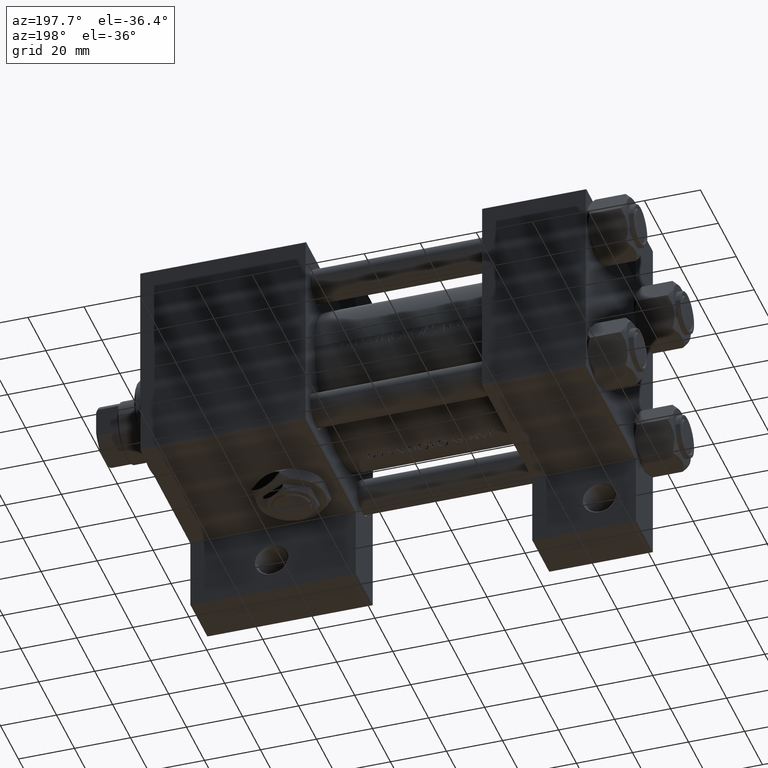
[diagram: clean part render]
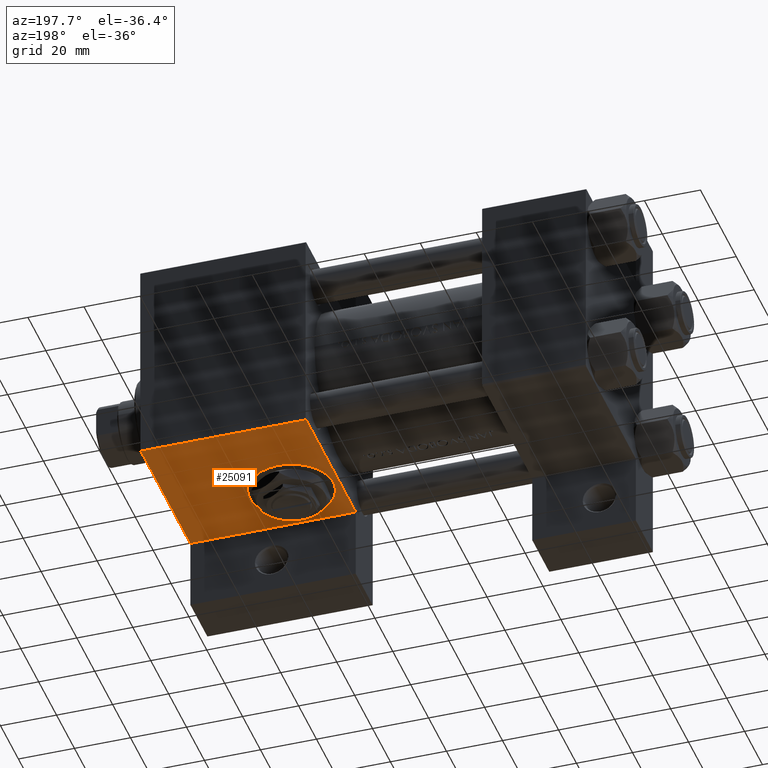
[diagram: same view with one face highlighted and labeled with its STEP entity id]
A machine part, auxiliary view. The second image highlights one B-rep face of the part: STEP entity #25091.
In plain terms, the highlighted planar face has unit normal (0, 0, -1).
Its self-contained STEP definition (entity closure, byte-faithful):
#477 = LINE ( 'NONE', #45808, #22704 ) ;
#1325 = EDGE_CURVE ( 'NONE', #25339, #25888, #40854, .T. ) ;
#1825 = ORIENTED_EDGE ( 'NONE', *, *, #14873, .T. ) ;
#2653 = CARTESIAN_POINT ( 'NONE',  ( 159.0000000000000000, 37.50000000000000000, 36.99999999999999289 ) ) ;
#3644 = CARTESIAN_POINT ( 'NONE',  ( 159.0000000000000000, 37.50000000000000000, 36.99999999999999289 ) ) ;
#4543 = LINE ( 'NONE', #20467, #28170 ) ;
#4988 = VERTEX_POINT ( 'NONE', #43506 ) ;
#5243 = VECTOR ( 'NONE', #33274, 1000.000000000000000 ) ;
#6941 = EDGE_LOOP ( 'NONE', ( #13994, #46259 ) ) ;
#7078 = CARTESIAN_POINT ( 'NONE',  ( 117.0000000000000000, 37.50000000000000000, 0.000000000000000000 ) ) ;
#8045 = CARTESIAN_POINT ( 'NONE',  ( 159.0000000000000000, 37.50000000000000000, 37.49999999999999289 ) ) ;
#8793 = ORIENTED_EDGE ( 'NONE', *, *, #48810, .T. ) ;
#10976 = CARTESIAN_POINT ( 'NONE',  ( 117.0000000000000000, 37.50000000000000000, 15.00000000000001243 ) ) ;
#11843 = VECTOR ( 'NONE', #44651, 1000.000000000000000 ) ;
#13994 = ORIENTED_EDGE ( 'NONE', *, *, #1325, .F. ) ;
#14139 = CARTESIAN_POINT ( 'NONE',  ( 117.0000000000000000, 37.50000000000000000, 0.000000000000000000 ) ) ;
#14415 = AXIS2_PLACEMENT_3D ( 'NONE', #8045, #22989, #38182 ) ;
#14767 = FACE_OUTER_BOUND ( 'NONE', #16002, .T. ) ;
#14873 = EDGE_CURVE ( 'NONE', #17704, #27780, #48381, .T. ) ;
#15037 = VERTEX_POINT ( 'NONE', #48499 ) ;
#16002 = EDGE_LOOP ( 'NONE', ( #48958, #16948, #1825, #8793 ) ) ;
#16157 = AXIS2_PLACEMENT_3D ( 'NONE', #7078, #32488, #32981 ) ;
#16727 = AXIS2_PLACEMENT_3D ( 'NONE', #14139, #28601, #36053 ) ;
#16948 = ORIENTED_EDGE ( 'NONE', *, *, #38566, .T. ) ;
#17704 = VERTEX_POINT ( 'NONE', #3644 ) ;
#19492 = FACE_BOUND ( 'NONE', #6941, .T. ) ;
#19523 = EDGE_CURVE ( 'NONE', #25888, #25339, #32667, .T. ) ;
#20467 = CARTESIAN_POINT ( 'NONE',  ( 100.0000000000000000, 37.50000000000000000, 37.49999999999999289 ) ) ;
#21587 = LINE ( 'NONE', #2653, #5243 ) ;
#22637 = DIRECTION ( 'NONE',  ( -1.000000000000000000, 3.528251137579948571E-16, -0.000000000000000000 ) ) ;
#22704 = VECTOR ( 'NONE', #22637, 1000.000000000000000 ) ;
#22989 = DIRECTION ( 'NONE',  ( -0.000000000000000000, 1.000000000000000000, 0.000000000000000000 ) ) ;
#25091 = ADVANCED_FACE ( 'NONE', ( #19492, #14767 ), #41672, .T. ) ;
#25339 = VERTEX_POINT ( 'NONE', #10976 ) ;
#25888 = VERTEX_POINT ( 'NONE', #45485 ) ;
#27780 = VERTEX_POINT ( 'NONE', #34793 ) ;
#28170 = VECTOR ( 'NONE', #42400, 1000.000000000000000 ) ;
#28601 = DIRECTION ( 'NONE',  ( 0.000000000000000000, 1.000000000000000000, 0.000000000000000000 ) ) ;
#32488 = DIRECTION ( 'NONE',  ( 0.000000000000000000, 1.000000000000000000, 0.000000000000000000 ) ) ;
#32667 = CIRCLE ( 'NONE', #16727, 15.00000000000001243 ) ;
#32981 = DIRECTION ( 'NONE',  ( 0.000000000000000000, 0.000000000000000000, 1.000000000000000000 ) ) ;
#33274 = DIRECTION ( 'NONE',  ( 1.000000000000000000, 0.000000000000000000, 0.000000000000000000 ) ) ;
#34793 = CARTESIAN_POINT ( 'NONE',  ( 158.9999999999999716, 37.49999999999997868, -18.50000000000000000 ) ) ;
#35719 = EDGE_CURVE ( 'NONE', #15037, #4988, #4543, .T. ) ;
#36053 = DIRECTION ( 'NONE',  ( 0.000000000000000000, 0.000000000000000000, 1.000000000000000000 ) ) ;
#38182 = DIRECTION ( 'NONE',  ( 0.000000000000000000, -0.000000000000000000, 1.000000000000000000 ) ) ;
#38566 = EDGE_CURVE ( 'NONE', #15037, #17704, #21587, .T. ) ;
#40168 = CARTESIAN_POINT ( 'NONE',  ( 159.0000000000000000, 37.50000000000000000, 37.49999999999999289 ) ) ;
#40854 = CIRCLE ( 'NONE', #16157, 15.00000000000001243 ) ;
#41672 = PLANE ( 'NONE',  #14415 ) ;
#42400 = DIRECTION ( 'NONE',  ( 0.000000000000000000, 0.000000000000000000, -1.000000000000000000 ) ) ;
#43506 = CARTESIAN_POINT ( 'NONE',  ( 100.0000000000000000, 37.50000000000000000, -18.50000000000000355 ) ) ;
#44651 = DIRECTION ( 'NONE',  ( 0.000000000000000000, 0.000000000000000000, -1.000000000000000000 ) ) ;
#45485 = CARTESIAN_POINT ( 'NONE',  ( 117.0000000000000000, 37.50000000000000000, -15.00000000000001243 ) ) ;
#45808 = CARTESIAN_POINT ( 'NONE',  ( 100.0000000000000000, 37.50000000000000000, -18.50000000000000000 ) ) ;
#46259 = ORIENTED_EDGE ( 'NONE', *, *, #19523, .F. ) ;
#48381 = LINE ( 'NONE', #40168, #11843 ) ;
#48499 = CARTESIAN_POINT ( 'NONE',  ( 100.0000000000000000, 37.50000000000000000, 36.99999999999999289 ) ) ;
#48810 = EDGE_CURVE ( 'NONE', #27780, #4988, #477, .T. ) ;
#48958 = ORIENTED_EDGE ( 'NONE', *, *, #35719, .F. ) ;